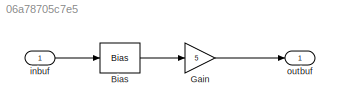
MODEL slx_06a78705c7e5
KIND model
CONFIG AbsTol = auto
CONFIG EnableMultiTasking = on
CONFIG FixedStep = auto
CONFIG MaxStep = auto
CONFIG MinStep = auto
CONFIG RelTol = 1e-3
CONFIG SampleTimeConstraint = Unconstrained
CONFIG SolverName = FixedStepDiscrete
CONFIG StartTime = 0.0
CONFIG StopTime = 10
BLOCK [Bias] Bias
  Bias = 32
  SaturateOnIntegerOverflow = off
BLOCK [Gain] Gain
  Gain = 5
BLOCK [Inport] inbuf
  OutDataTypeStr = double
  PortDimensions = 100
  SampleTime = [0.10000000000000001,0]
  SamplingMode = Sample based
  SignalType = real
BLOCK [Outport] outbuf
  OutDataTypeStr = double
  PortDimensions = 100
  SampleTime = [0.10000000000000001,0]
  SamplingMode = Sample based
  SignalType = real
LINE Bias:1 -> Gain:1
LINE Gain:1 -> outbuf:1
LINE inbuf:1 -> Bias:1
